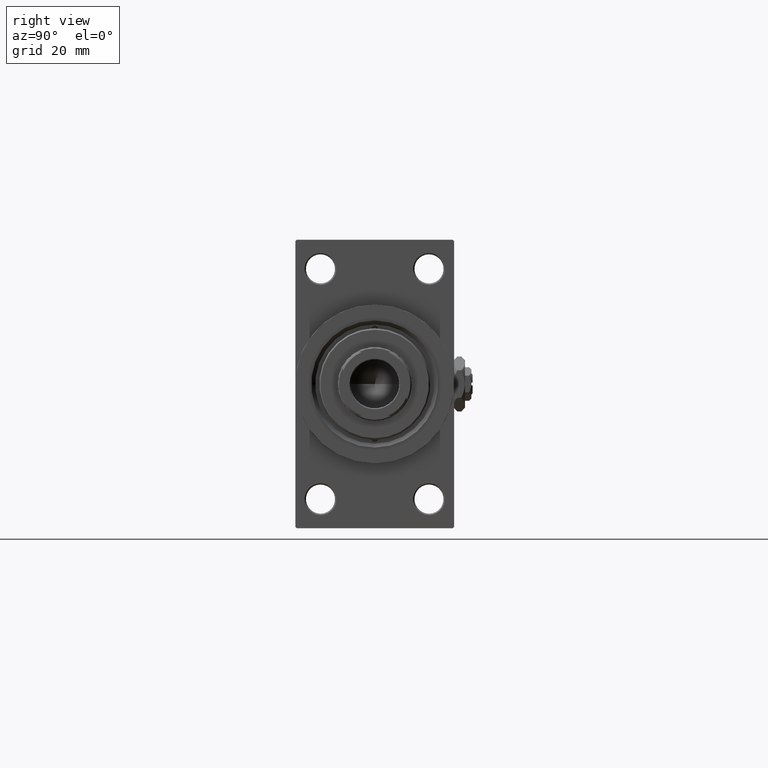
[diagram: clean part render]
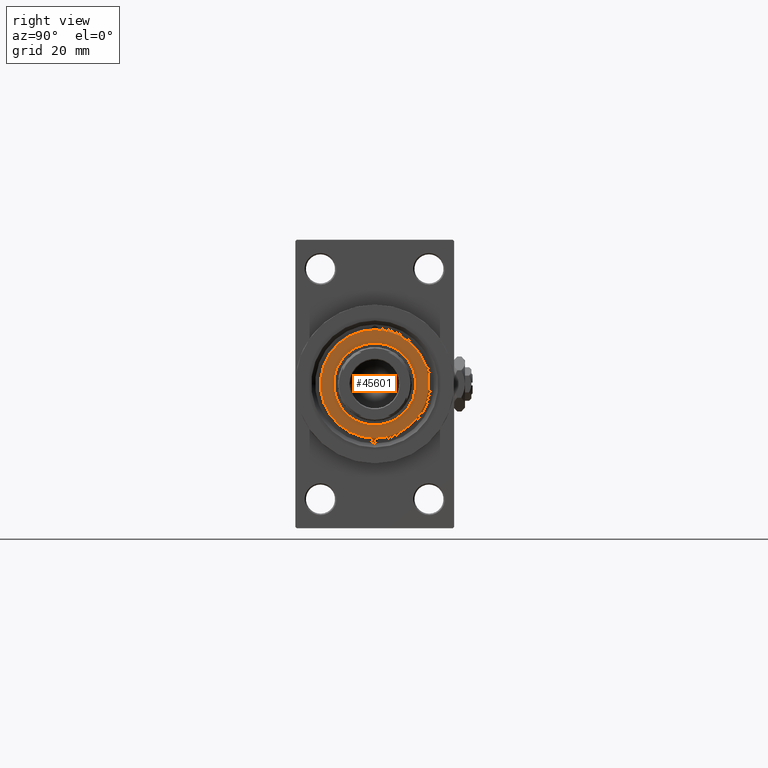
[diagram: same view with one face highlighted and labeled with its STEP entity id]
A machine part, right view. The second image highlights one B-rep face of the part: STEP entity #45601.
In plain terms, the highlighted planar face has unit normal (1, -0, -0).
Its self-contained STEP definition (entity closure, byte-faithful):
#583 = VERTEX_POINT ( 'NONE', #31310 ) ;
#1718 = DIRECTION ( 'NONE',  ( 1.000000000000000000, 0.000000000000000000, 0.000000000000000000 ) ) ;
#2891 = ORIENTED_EDGE ( 'NONE', *, *, #4628, .T. ) ;
#4628 = EDGE_CURVE ( 'NONE', #9619, #38155, #5788, .T. ) ;
#4776 = DIRECTION ( 'NONE',  ( 0.000000000000000000, 0.000000000000000000, 1.000000000000000000 ) ) ;
#4871 = ORIENTED_EDGE ( 'NONE', *, *, #32205, .F. ) ;
#5485 = CARTESIAN_POINT ( 'NONE',  ( 0.000000000000000000, 0.000000000000000000, 55.26000000000000512 ) ) ;
#5788 = CIRCLE ( 'NONE', #24901, 20.50000000000000355 ) ;
#6334 = PLANE ( 'NONE',  #46016 ) ;
#8283 = CIRCLE ( 'NONE', #21091, 20.50000000000000355 ) ;
#8337 = CARTESIAN_POINT ( 'NONE',  ( -20.50000000000000355, 0.000000000000000000, 55.26000000000000512 ) ) ;
#9001 = DIRECTION ( 'NONE',  ( 0.000000000000000000, 0.000000000000000000, 1.000000000000000000 ) ) ;
#9619 = VERTEX_POINT ( 'NONE', #20863 ) ;
#10060 = CARTESIAN_POINT ( 'NONE',  ( 15.50000000000000000, 0.000000000000000000, 55.26000000000000512 ) ) ;
#10199 = DIRECTION ( 'NONE',  ( 0.000000000000000000, 0.000000000000000000, 1.000000000000000000 ) ) ;
#10332 = DIRECTION ( 'NONE',  ( 1.000000000000000000, 0.000000000000000000, -0.000000000000000000 ) ) ;
#10828 = FACE_BOUND ( 'NONE', #25006, .T. ) ;
#11695 = DIRECTION ( 'NONE',  ( 1.000000000000000000, 0.000000000000000000, 0.000000000000000000 ) ) ;
#12882 = ORIENTED_EDGE ( 'NONE', *, *, #21924, .F. ) ;
#13966 = DIRECTION ( 'NONE',  ( 1.000000000000000000, 0.000000000000000000, 0.000000000000000000 ) ) ;
#16182 = CARTESIAN_POINT ( 'NONE',  ( 0.000000000000000000, 0.000000000000000000, 55.26000000000000512 ) ) ;
#17601 = EDGE_LOOP ( 'NONE', ( #30036, #2891 ) ) ;
#18583 = AXIS2_PLACEMENT_3D ( 'NONE', #39125, #4776, #20069 ) ;
#20069 = DIRECTION ( 'NONE',  ( 1.000000000000000000, 0.000000000000000000, 0.000000000000000000 ) ) ;
#20863 = CARTESIAN_POINT ( 'NONE',  ( 20.50000000000000355, 2.541142108230758269E-15, 55.26000000000000512 ) ) ;
#21091 = AXIS2_PLACEMENT_3D ( 'NONE', #16182, #39250, #11695 ) ;
#21924 = EDGE_CURVE ( 'NONE', #583, #31063, #26585, .T. ) ;
#24901 = AXIS2_PLACEMENT_3D ( 'NONE', #37274, #10199, #13966 ) ;
#25006 = EDGE_LOOP ( 'NONE', ( #4871, #12882 ) ) ;
#26585 = CIRCLE ( 'NONE', #18583, 15.50000000000000000 ) ;
#28816 = EDGE_CURVE ( 'NONE', #38155, #9619, #8283, .T. ) ;
#30036 = ORIENTED_EDGE ( 'NONE', *, *, #28816, .T. ) ;
#31063 = VERTEX_POINT ( 'NONE', #10060 ) ;
#31310 = CARTESIAN_POINT ( 'NONE',  ( -15.50000000000000000, 1.898202538678397557E-15, 55.26000000000000512 ) ) ;
#32205 = EDGE_CURVE ( 'NONE', #31063, #583, #42862, .T. ) ;
#33645 = CARTESIAN_POINT ( 'NONE',  ( 0.000000000000000000, 0.000000000000000000, 55.26000000000000512 ) ) ;
#37274 = CARTESIAN_POINT ( 'NONE',  ( 0.000000000000000000, 0.000000000000000000, 55.26000000000000512 ) ) ;
#38051 = AXIS2_PLACEMENT_3D ( 'NONE', #5485, #9001, #1718 ) ;
#38155 = VERTEX_POINT ( 'NONE', #8337 ) ;
#39125 = CARTESIAN_POINT ( 'NONE',  ( 0.000000000000000000, 0.000000000000000000, 55.26000000000000512 ) ) ;
#39250 = DIRECTION ( 'NONE',  ( 0.000000000000000000, 0.000000000000000000, 1.000000000000000000 ) ) ;
#42862 = CIRCLE ( 'NONE', #38051, 15.50000000000000000 ) ;
#45427 = DIRECTION ( 'NONE',  ( 0.000000000000000000, 0.000000000000000000, 1.000000000000000000 ) ) ;
#45601 = ADVANCED_FACE ( 'NONE', ( #10828, #48204 ), #6334, .T. ) ;
#46016 = AXIS2_PLACEMENT_3D ( 'NONE', #33645, #45427, #10332 ) ;
#48204 = FACE_OUTER_BOUND ( 'NONE', #17601, .T. ) ;